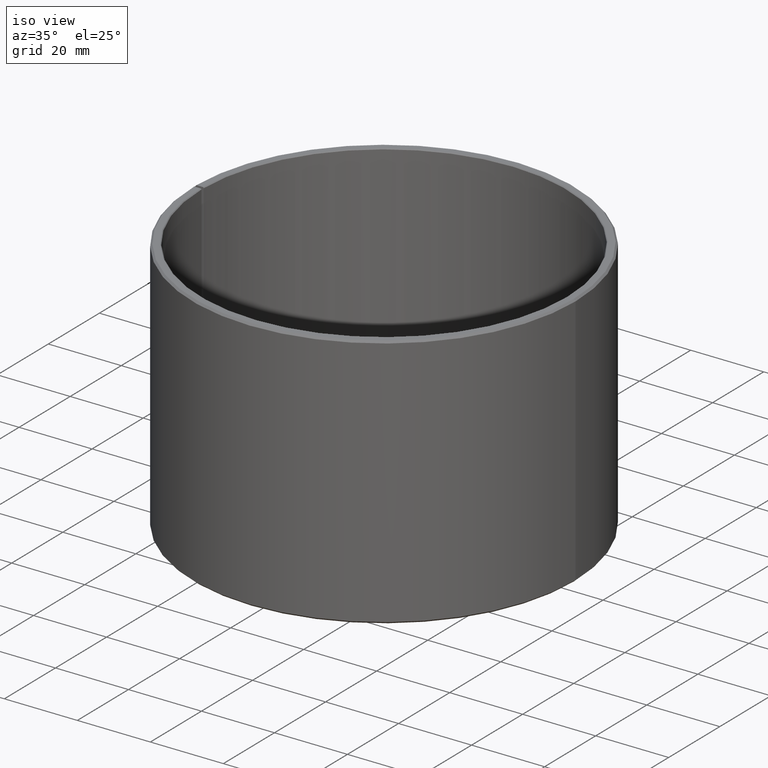
[diagram: clean part render]
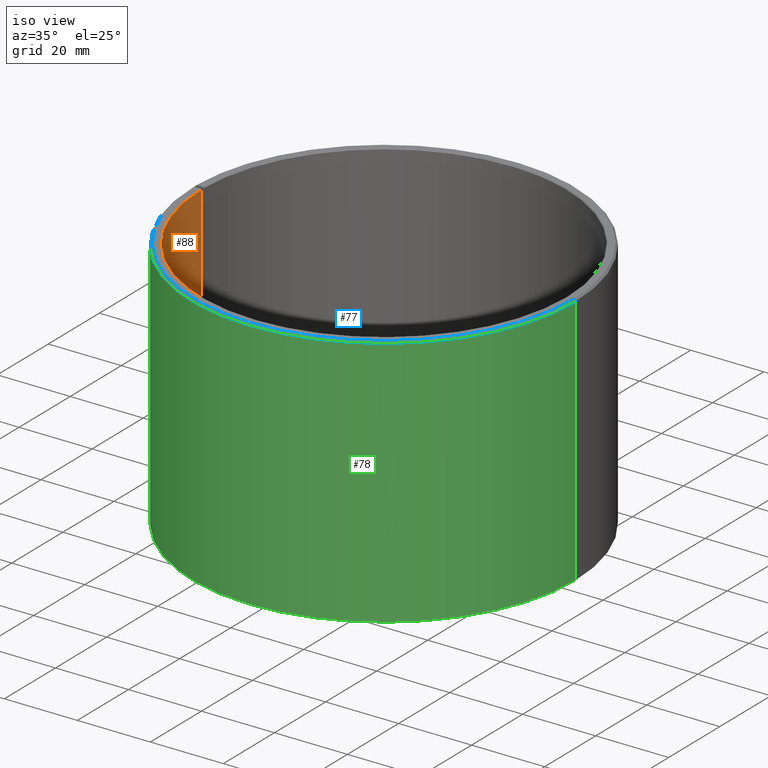
[diagram: same view with three faces highlighted in distinct colors, each labeled with its STEP entity id]
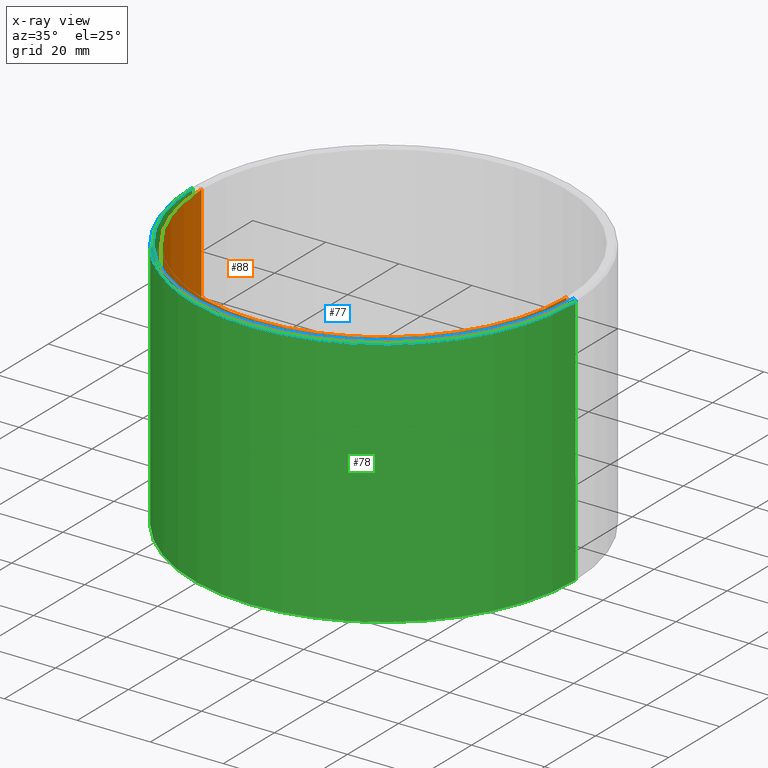
[diagram: x-ray of the same camera — body ghosted, the three highlighted faces saturated]
A machine part, iso view with three faces highlighted in distinct colors.
The next image is the same camera in x-ray (body ghosted, the three faces saturated) — at least one of them is partly hidden behind the body in this view.
Their STEP definitions:

[orange] entity #88 — the highlighted cylindrical surface (partial cylindrical patch) has radius 50 mm, axis along (0, -0, 1).
#88=ADVANCED_FACE('',(#118),#119,.F.);
#118=FACE_OUTER_BOUND('',#150,.T.);
#119=CYLINDRICAL_SURFACE('',#151,50.0);
#150=EDGE_LOOP('',(#251,#252,#253,#254));
#151=AXIS2_PLACEMENT_3D('',#255,#256,#257);
#251=ORIENTED_EDGE('',*,*,#280,.T.);
#252=ORIENTED_EDGE('',*,*,#302,.F.);
#253=ORIENTED_EDGE('',*,*,#317,.F.);
#254=ORIENTED_EDGE('',*,*,#315,.T.);
#255=CARTESIAN_POINT('',(2.06682811917609E-014,-2.32943648334384E-014,35.0));
#256=DIRECTION('',(5.48707263966372E-016,-6.09939603923743E-016,1.0));
#257=DIRECTION('',(-1.0,-3.21624529935328E-016,5.48707263966372E-016));
#280=EDGE_CURVE('',#318,#319,#320,.T.);
#302=EDGE_CURVE('',#356,#319,#358,.T.);
#315=EDGE_CURVE('',#376,#318,#377,.T.);
#317=EDGE_CURVE('',#376,#356,#379,.T.);
#318=VERTEX_POINT('',#380);
#319=VERTEX_POINT('',#381);
#320=LINE('',#382,#383);
#356=VERTEX_POINT('',#430);
#358=CIRCLE('',#433,50.0);
#376=VERTEX_POINT('',#458);
#377=CIRCLE('',#459,50.0);
#379=LINE('',#462,#463);
#380=CARTESIAN_POINT('',(50.0,-3.46457079336932E-014,69.8));
#381=CARTESIAN_POINT('',(50.0,7.97296326887558E-015,0.199999999999971));
#382=CARTESIAN_POINT('',(50.0,-1.33363723324088E-014,35.0));
#383=VECTOR('',#464,1.0);
#430=CARTESIAN_POINT('',(-50.0,-1.77910804189176E-014,0.20000000000003));
#433=AXIS2_PLACEMENT_3D('',#504,#505,#506);
#458=CARTESIAN_POINT('',(-49.9999999999999,-6.04219980894779E-014,69.8));
#459=AXIS2_PLACEMENT_3D('',#529,#530,#531);
#462=CARTESIAN_POINT('',(-49.9999999999999,-6.04219980894779E-014,69.8));
#463=VECTOR('',#533,10.0);
#464=DIRECTION('',(-5.48707263966372E-016,6.09939603923743E-016,-1.0));
#504=CARTESIAN_POINT('',(1.57326840573107E-015,-1.97890599815828E-015,0.199999999999998));
#505=DIRECTION('',(5.48707263966372E-016,-6.09939603923743E-016,1.0));
#506=DIRECTION('',(-1.0,-3.21624529935327E-016,5.48707263966372E-016));
#529=CARTESIAN_POINT('',(3.97632939777907E-014,-4.46098236687186E-014,69.8));
#530=DIRECTION('',(5.48707263966372E-016,-6.09939603923743E-016,1.0));
#531=DIRECTION('',(-1.0,-3.21624529935328E-016,5.48707263966372E-016));
#533=DIRECTION('',(-9.31542789699185E-016,6.12513184921844E-016,-1.0));

[blue] entity #77 — the highlighted conical surface has half-angle 45 deg.
#77=ADVANCED_FACE('',(#96),#97,.T.);
#96=FACE_OUTER_BOUND('',#128,.T.);
#97=CONICAL_SURFACE('',#129,52.25,0.785398163397448);
#128=EDGE_LOOP('',(#170,#171,#172,#173));
#129=AXIS2_PLACEMENT_3D('',#174,#175,#176);
#170=ORIENTED_EDGE('',*,*,#287,.F.);
#171=ORIENTED_EDGE('',*,*,#288,.F.);
#172=ORIENTED_EDGE('',*,*,#289,.F.);
#173=ORIENTED_EDGE('',*,*,#290,.T.);
#174=CARTESIAN_POINT('',(3.97358586145923E-014,-4.45823883055203E-014,69.75));
#175=DIRECTION('',(-5.48707263966372E-016,6.09939603923743E-016,-1.0));
#176=DIRECTION('',(-1.0,-3.21624529935327E-016,5.48707263966372E-016));
#287=EDGE_CURVE('',#331,#332,#333,.T.);
#288=EDGE_CURVE('',#334,#331,#335,.T.);
#289=EDGE_CURVE('',#336,#334,#337,.T.);
#290=EDGE_CURVE('',#336,#332,#338,.T.);
#331=VERTEX_POINT('',#397);
#332=VERTEX_POINT('',#398);
#333=LINE('',#399,#400);
#334=VERTEX_POINT('',#401);
#335=CIRCLE('',#402,52.0);
#336=VERTEX_POINT('',#403);
#337=LINE('',#404,#405);
#338=CIRCLE('',#406,52.5);
#397=CARTESIAN_POINT('',(52.0000000000001,-3.43785610054304E-014,70.0));
#398=CARTESIAN_POINT('',(52.5000000000001,-3.38813890427265E-014,69.5));
#399=CARTESIAN_POINT('',(52.2500000000001,-3.41762861419443E-014,69.75));
#400=VECTOR('',#477,1.0);
#401=CARTESIAN_POINT('',(-52.0,-6.12974532820565E-014,70.0));
#402=AXIS2_PLACEMENT_3D('',#478,#479,#480);
#403=CARTESIAN_POINT('',(-52.5,-6.06594165727071E-014,69.5));
#404=CARTESIAN_POINT('',(-52.5,-6.06594165727071E-014,69.5));
#405=VECTOR('',#481,10.0);
#406=AXIS2_PLACEMENT_3D('',#482,#483,#484);
#477=DIRECTION('',(0.707106781186547,5.72119710538372E-016,-0.707106781186548));
#478=CARTESIAN_POINT('',(3.98730354305839E-014,-4.47195651215119E-014,70.0));
#479=DIRECTION('',(5.48707263966372E-016,-6.09939603923743E-016,1.0));
#480=DIRECTION('',(-1.0,-3.21624529935327E-016,5.48707263966372E-016));
#481=DIRECTION('',(0.707106781186548,-1.60571741123735E-016,0.707106781186547));
#482=CARTESIAN_POINT('',(3.95986817986007E-014,-4.44452114895287E-014,69.5));
#483=DIRECTION('',(5.48707263966372E-016,-6.09939603923743E-016,1.0));
#484=DIRECTION('',(-1.0,-3.21624529935327E-016,5.48707263966372E-016));

[green] entity #78 — the highlighted cylindrical surface (partial cylindrical patch) has radius 52.5 mm, axis along (0, -0, 1).
#78=ADVANCED_FACE('',(#98),#99,.T.);
#98=FACE_OUTER_BOUND('',#130,.T.);
#99=CYLINDRICAL_SURFACE('',#131,52.5);
#130=EDGE_LOOP('',(#177,#178,#179,#180));
#131=AXIS2_PLACEMENT_3D('',#181,#182,#183);
#177=ORIENTED_EDGE('',*,*,#291,.F.);
#178=ORIENTED_EDGE('',*,*,#290,.F.);
#179=ORIENTED_EDGE('',*,*,#292,.F.);
#180=ORIENTED_EDGE('',*,*,#293,.T.);
#181=CARTESIAN_POINT('',(2.06682811917609E-014,-2.32943648334384E-014,35.0));
#182=DIRECTION('',(5.48707263966372E-016,-6.09939603923743E-016,1.0));
#183=DIRECTION('',(-1.0,-3.21624529935327E-016,5.48707263966372E-016));
#290=EDGE_CURVE('',#336,#332,#338,.T.);
#291=EDGE_CURVE('',#332,#339,#340,.T.);
#292=EDGE_CURVE('',#341,#336,#342,.T.);
#293=EDGE_CURVE('',#341,#339,#343,.T.);
#332=VERTEX_POINT('',#398);
#336=VERTEX_POINT('',#403);
#338=CIRCLE('',#406,52.5);
#339=VERTEX_POINT('',#407);
#340=LINE('',#408,#409);
#341=VERTEX_POINT('',#410);
#342=LINE('',#411,#412);
#343=CIRCLE('',#413,52.5);
#398=CARTESIAN_POINT('',(52.5000000000001,-3.38813890427265E-014,69.5));
#403=CARTESIAN_POINT('',(-52.5,-6.06594165727071E-014,69.5));
#406=AXIS2_PLACEMENT_3D('',#482,#483,#484);
#407=CARTESIAN_POINT('',(52.5,8.29706586374355E-015,0.499999999999972));
#408=CARTESIAN_POINT('',(52.5,-1.28384727073573E-014,35.0));
#409=VECTOR('',#485,1.0);
#410=CARTESIAN_POINT('',(-52.5,-1.83577232605266E-014,0.500000000000032));
#411=CARTESIAN_POINT('',(-52.5,-1.83577232605266E-014,0.500000000000032));
#412=VECTOR('',#486,10.0);
#413=AXIS2_PLACEMENT_3D('',#487,#488,#489);
#482=CARTESIAN_POINT('',(3.95986817986007E-014,-4.44452114895287E-014,69.5));
#483=DIRECTION('',(5.48707263966372E-016,-6.09939603923743E-016,1.0));
#484=DIRECTION('',(-1.0,-3.21624529935327E-016,5.48707263966372E-016));
#485=DIRECTION('',(-5.48707263966372E-016,6.09939603923743E-016,-1.0));
#486=DIRECTION('',(5.48707263966372E-016,-6.13068019017109E-016,1.0));
#487=CARTESIAN_POINT('',(1.73788058492098E-015,-2.1435181773482E-015,0.5));
#488=DIRECTION('',(5.48707263966372E-016,-6.09939603923743E-016,1.0));
#489=DIRECTION('',(-1.0,-3.21624529935327E-016,5.48707263966372E-016));